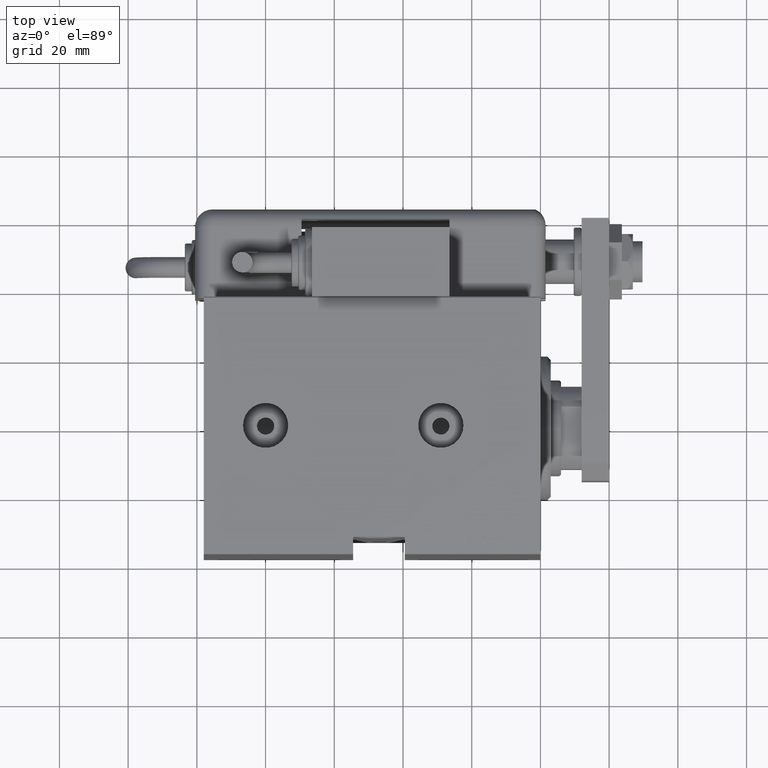
[diagram: clean part render]
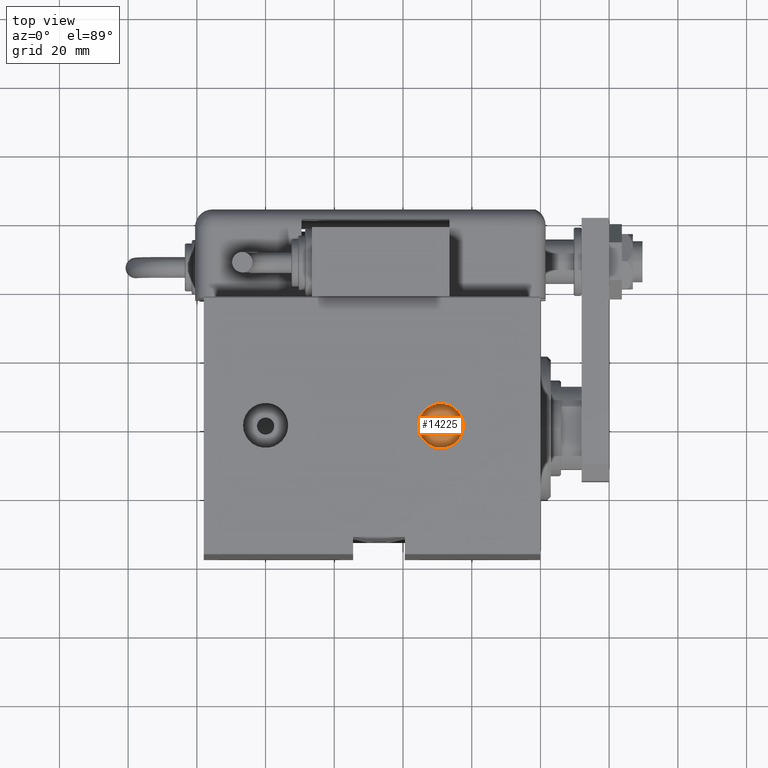
[diagram: same view with one face highlighted and labeled with its STEP entity id]
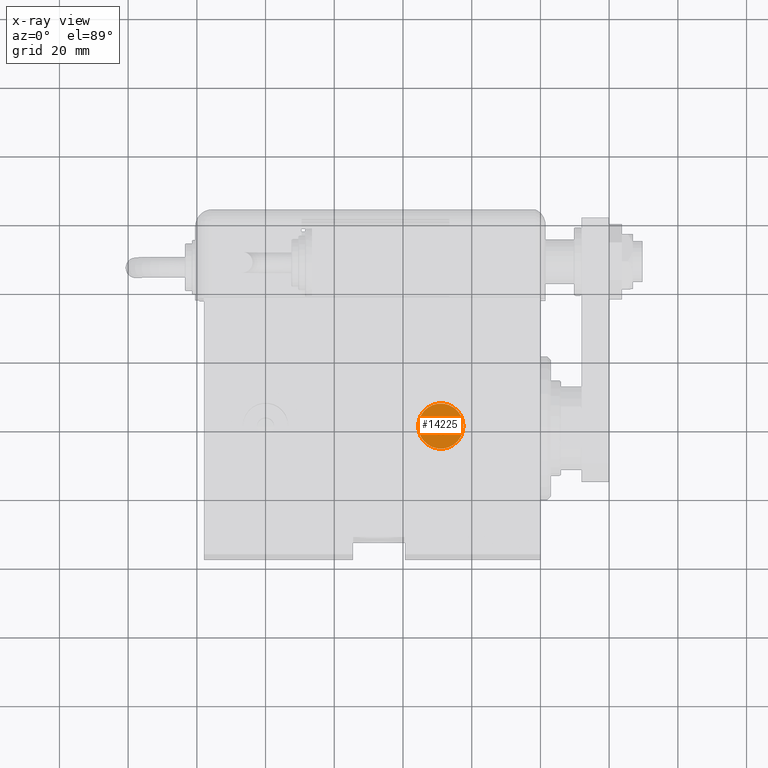
[diagram: x-ray of the same camera — body ghosted, the highlighted face saturated]
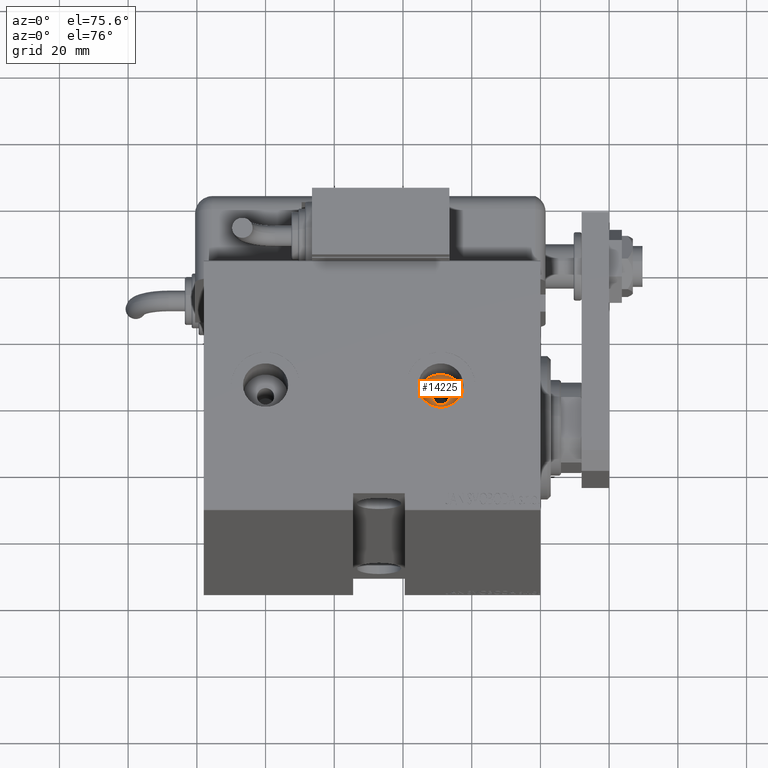
[diagram: same view with one face highlighted and labeled with its STEP entity id]
A machine part, top view. The second image highlights one B-rep face of the part: STEP entity #14225.
The next image is the same camera in x-ray: the body ghosted, the highlighted face saturated — about 0% of this face is hidden behind the body in this view.
A second angle (auxiliary view) of the same face is appended — the face is thin or edge-on in the first view.
In plain terms, the highlighted planar face has unit normal (0, 0, 1).
Its self-contained STEP definition (entity closure, byte-faithful):
#1195 = AXIS2_PLACEMENT_3D ( 'NONE', #8330, #21628, #21028 ) ;
#2324 = DIRECTION ( 'NONE',  ( 1.000000000000000000, 0.000000000000000000, 0.000000000000000000 ) ) ;
#2562 = PLANE ( 'NONE',  #1195 ) ;
#2856 = CARTESIAN_POINT ( 'NONE',  ( 31.50000000000000000, -9.251858538542975377E-15, 36.74000000000000909 ) ) ;
#4053 = EDGE_LOOP ( 'NONE', ( #25958, #50760 ) ) ;
#5479 = CARTESIAN_POINT ( 'NONE',  ( 29.00000000000000000, -9.251858538542975377E-15, 36.74000000000000909 ) ) ;
#8330 = CARTESIAN_POINT ( 'NONE',  ( 29.00000000000000000, -9.251858538542975377E-15, 36.74000000000000909 ) ) ;
#10421 = EDGE_CURVE ( 'NONE', #45168, #14160, #33895, .T. ) ;
#10911 = DIRECTION ( 'NONE',  ( 1.000000000000000000, 0.000000000000000000, 0.000000000000000000 ) ) ;
#14160 = VERTEX_POINT ( 'NONE', #2856 ) ;
#14225 = ADVANCED_FACE ( 'NONE', ( #17088, #25849 ), #2562, .T. ) ;
#14822 = VERTEX_POINT ( 'NONE', #19050 ) ;
#14857 = DIRECTION ( 'NONE',  ( 0.000000000000000000, 0.000000000000000000, 1.000000000000000000 ) ) ;
#14875 = AXIS2_PLACEMENT_3D ( 'NONE', #5479, #14857, #10911 ) ;
#16935 = CIRCLE ( 'NONE', #38198, 6.579999999999999183 ) ;
#17088 = FACE_BOUND ( 'NONE', #57071, .T. ) ;
#19050 = CARTESIAN_POINT ( 'NONE',  ( 35.57999999999999829, -9.251858538542975377E-15, 36.74000000000000909 ) ) ;
#19883 = AXIS2_PLACEMENT_3D ( 'NONE', #56602, #20020, #46939 ) ;
#20020 = DIRECTION ( 'NONE',  ( 0.000000000000000000, 0.000000000000000000, 1.000000000000000000 ) ) ;
#21028 = DIRECTION ( 'NONE',  ( 1.000000000000000000, 0.000000000000000000, -0.000000000000000000 ) ) ;
#21209 = CARTESIAN_POINT ( 'NONE',  ( 29.00000000000000000, -9.251858538542975377E-15, 36.74000000000000909 ) ) ;
#21628 = DIRECTION ( 'NONE',  ( 0.000000000000000000, 0.000000000000000000, 1.000000000000000000 ) ) ;
#22856 = VERTEX_POINT ( 'NONE', #53761 ) ;
#25849 = FACE_OUTER_BOUND ( 'NONE', #4053, .T. ) ;
#25958 = ORIENTED_EDGE ( 'NONE', *, *, #48403, .T. ) ;
#28118 = AXIS2_PLACEMENT_3D ( 'NONE', #21209, #48160, #39082 ) ;
#33472 = EDGE_CURVE ( 'NONE', #14160, #45168, #44815, .T. ) ;
#33895 = CIRCLE ( 'NONE', #28118, 2.499999999999998668 ) ;
#38198 = AXIS2_PLACEMENT_3D ( 'NONE', #39233, #38652, #2324 ) ;
#38652 = DIRECTION ( 'NONE',  ( 0.000000000000000000, 0.000000000000000000, 1.000000000000000000 ) ) ;
#39082 = DIRECTION ( 'NONE',  ( 1.000000000000000000, 0.000000000000000000, 0.000000000000000000 ) ) ;
#39233 = CARTESIAN_POINT ( 'NONE',  ( 29.00000000000000000, -9.251858538542975377E-15, 36.74000000000000909 ) ) ;
#40983 = CARTESIAN_POINT ( 'NONE',  ( 26.50000000000000355, -8.945696838756137507E-15, 36.74000000000000909 ) ) ;
#41125 = CIRCLE ( 'NONE', #19883, 6.579999999999999183 ) ;
#44815 = CIRCLE ( 'NONE', #14875, 2.499999999999998668 ) ;
#45168 = VERTEX_POINT ( 'NONE', #40983 ) ;
#46939 = DIRECTION ( 'NONE',  ( 1.000000000000000000, 0.000000000000000000, 0.000000000000000000 ) ) ;
#48160 = DIRECTION ( 'NONE',  ( 0.000000000000000000, 0.000000000000000000, 1.000000000000000000 ) ) ;
#48403 = EDGE_CURVE ( 'NONE', #14822, #22856, #16935, .T. ) ;
#50760 = ORIENTED_EDGE ( 'NONE', *, *, #52881, .T. ) ;
#52881 = EDGE_CURVE ( 'NONE', #22856, #14822, #41125, .T. ) ;
#53717 = ORIENTED_EDGE ( 'NONE', *, *, #10421, .F. ) ;
#53761 = CARTESIAN_POINT ( 'NONE',  ( 22.42000000000000171, -8.446040944704017913E-15, 36.74000000000000909 ) ) ;
#54366 = ORIENTED_EDGE ( 'NONE', *, *, #33472, .F. ) ;
#56602 = CARTESIAN_POINT ( 'NONE',  ( 29.00000000000000000, -9.251858538542975377E-15, 36.74000000000000909 ) ) ;
#57071 = EDGE_LOOP ( 'NONE', ( #54366, #53717 ) ) ;